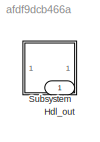
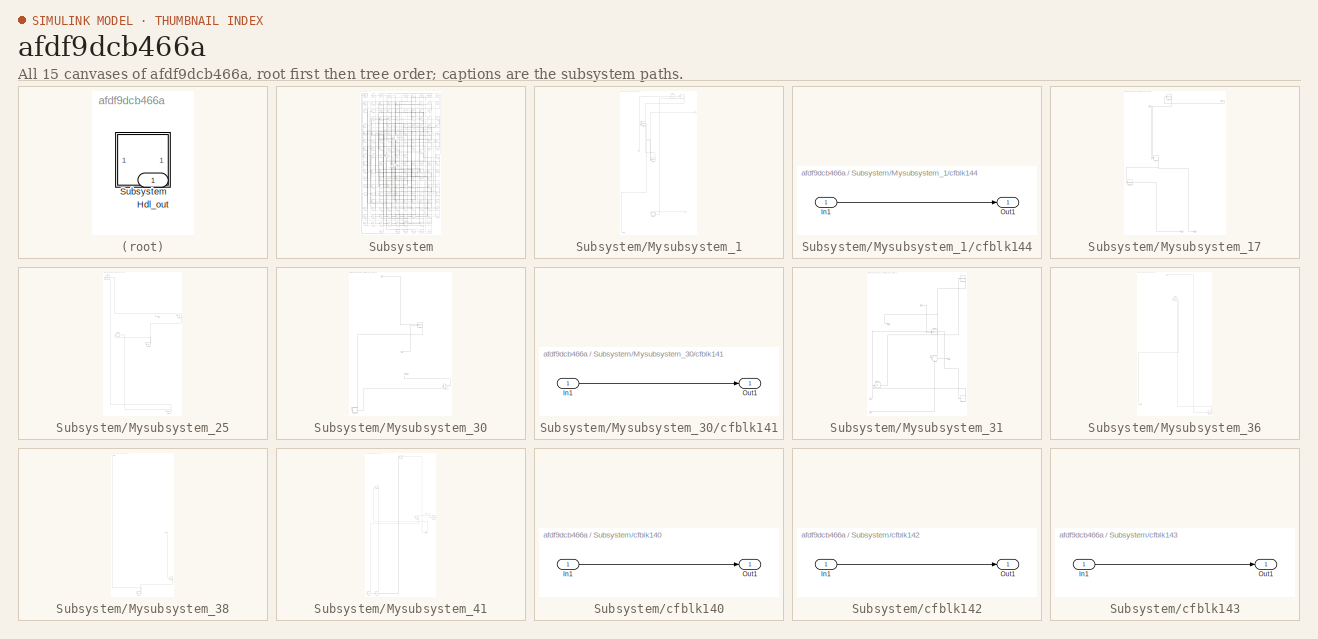
[diagram: thumbnail index - all 15 canvases of the model, root first then tree order]
MODEL slx_afdf9dcb466a
KIND model
CONFIG AbsTol = auto
CONFIG EnableMultiTasking = off
CONFIG FixedStep = auto
CONFIG MaxStep = auto
CONFIG MinStep = auto
CONFIG RelTol = 1e-3
CONFIG SampleTimeConstraint = Unconstrained
CONFIG SolverName = VariableStepAuto
CONFIG StartTime = 0.0
CONFIG StopTime = 10.0
BLOCK [Outport] Hdl_out
  OutDataTypeStr = uint8
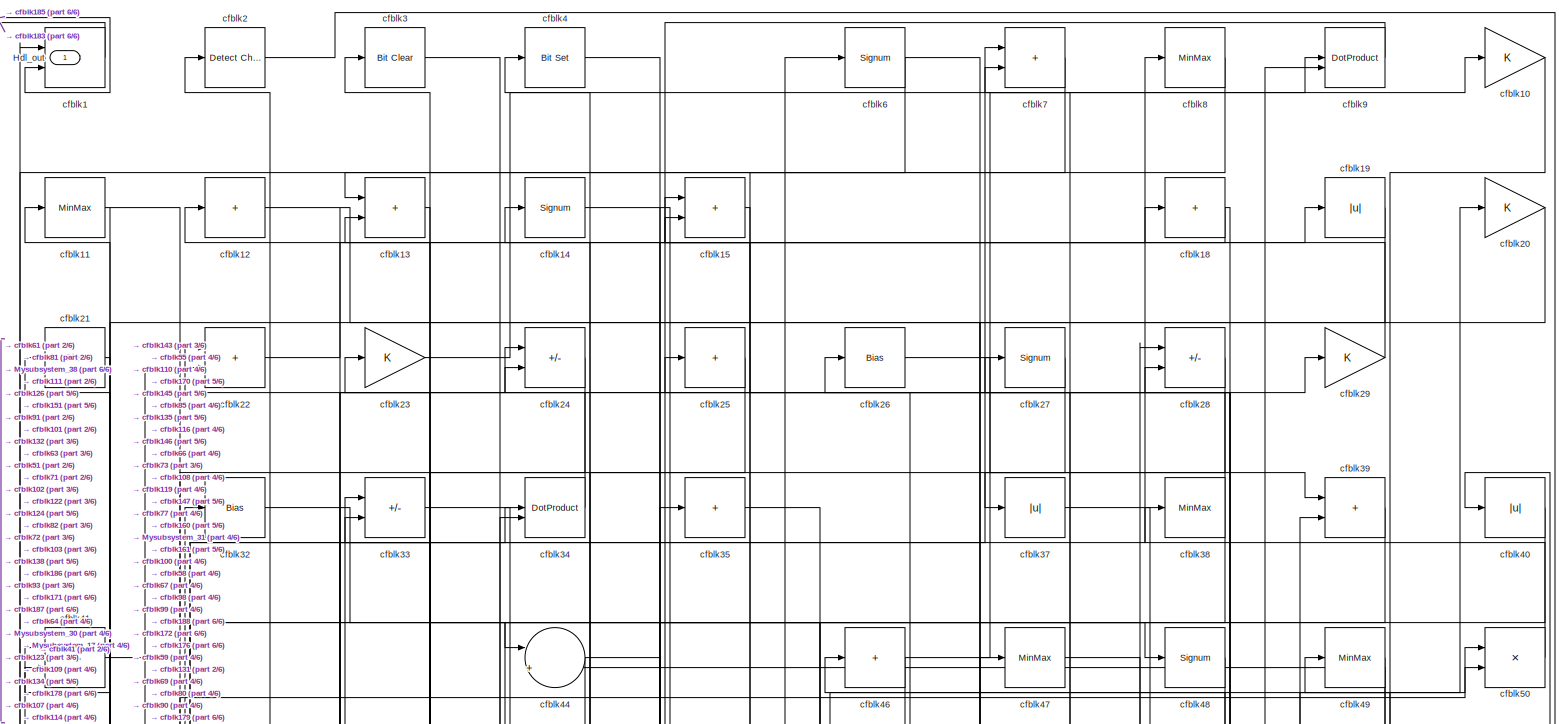
[diagram: Subsystem - part 1/6, full width, top band]
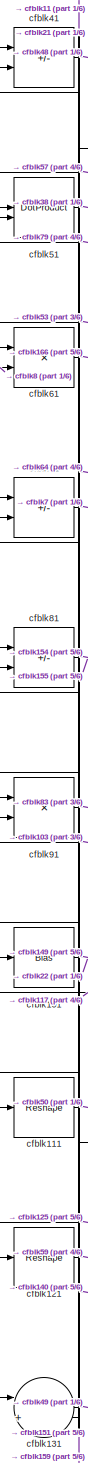
[diagram: Subsystem - part 2/6, middle left region]
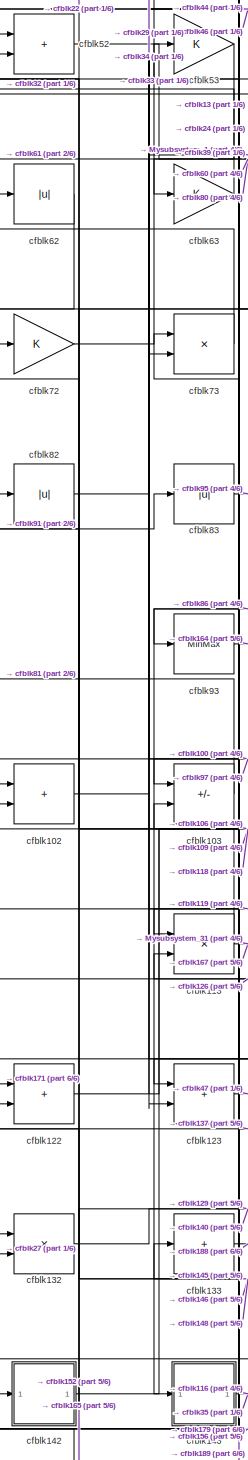
[diagram: Subsystem - part 3/6, middle left region]
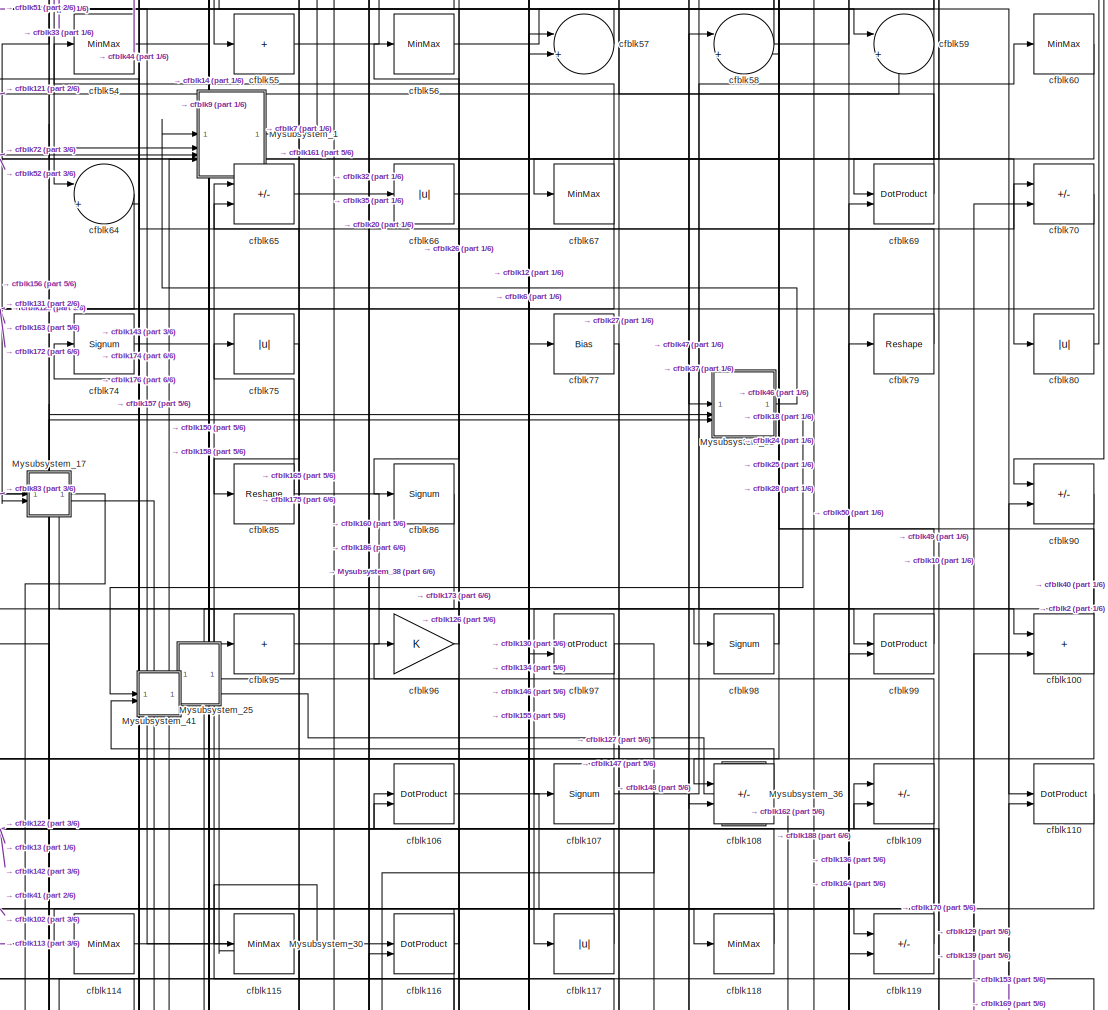
[diagram: Subsystem - part 4/6, central region]
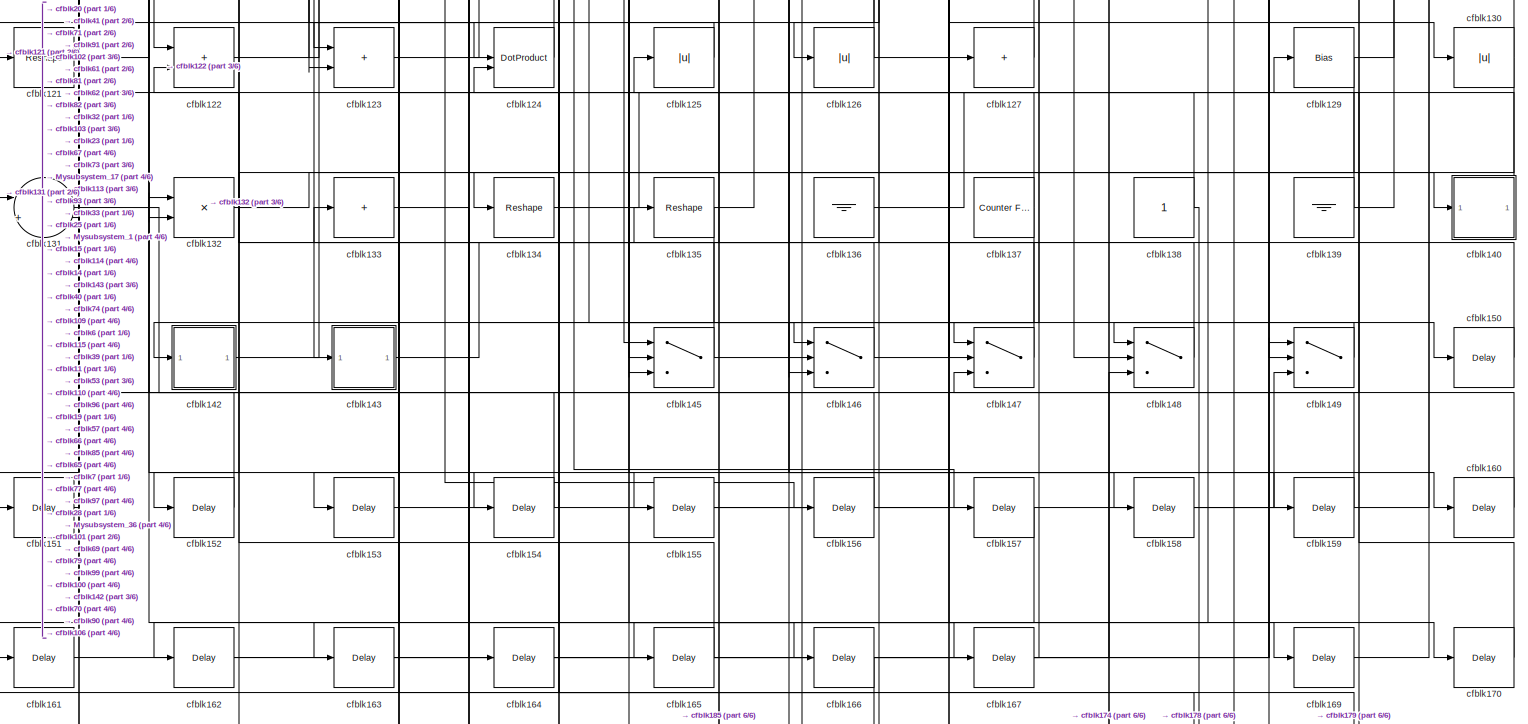
[diagram: Subsystem - part 5/6, full width, bottom band]
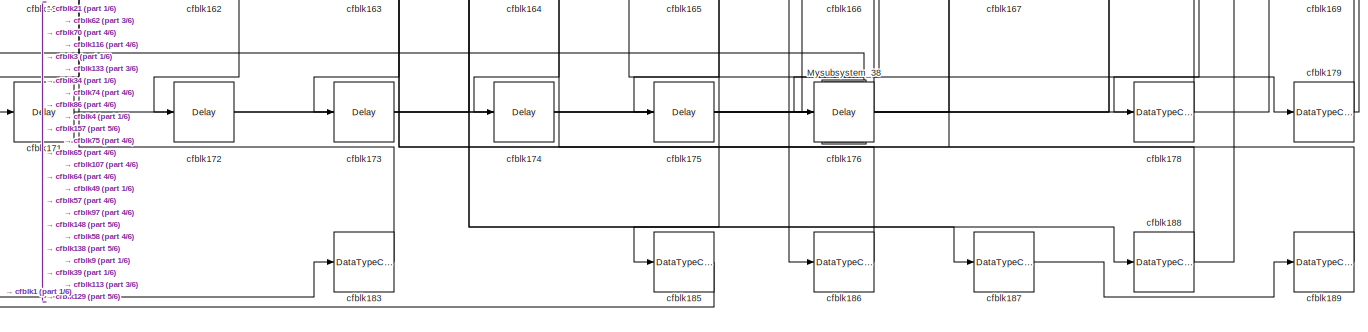
[diagram: Subsystem - part 6/6, full width, bottom band]
BLOCK [SubSystem] Subsystem
BLOCK [Outport] Subsystem/Hdl_out
  OutDataTypeStr = uint8
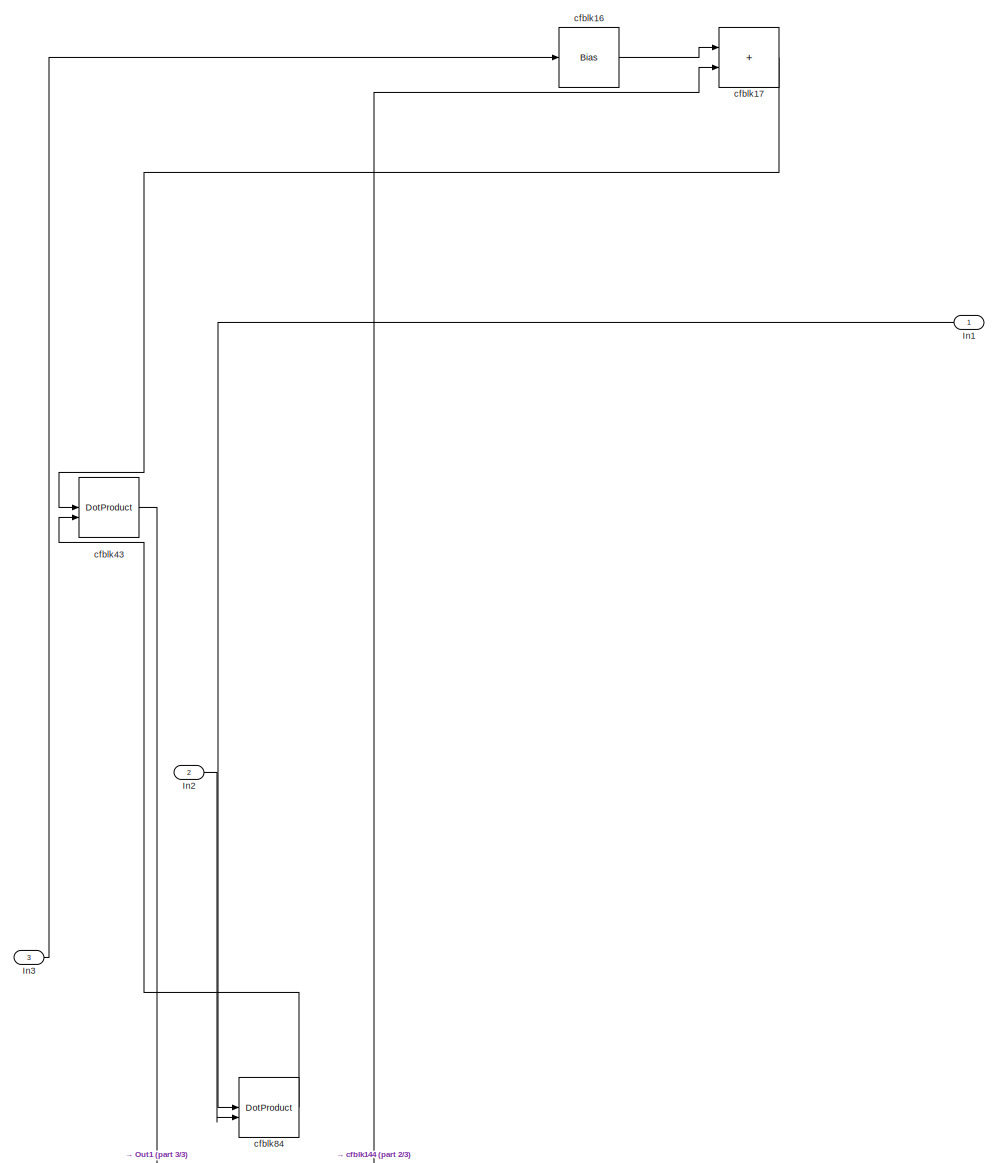
[diagram: Subsystem/Mysubsystem_1 - part 1/3, full width, top band]
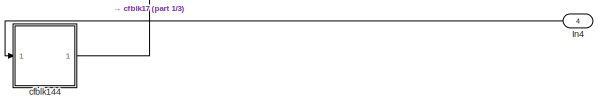
[diagram: Subsystem/Mysubsystem_1 - part 2/3, bottom center region]
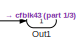
[diagram: Subsystem/Mysubsystem_1 - part 3/3, bottom left region]
BLOCK [SubSystem] Subsystem/Mysubsystem_1
  RTWFcnName = Mysubsystem_1
  RTWFcnNameOpts = User specified
  RTWFileNameOpts = Use function name
  RTWSystemCode = Reusable function
  TreatAsAtomicUnit = on
BLOCK [Inport] Subsystem/Mysubsystem_1/In1
BLOCK [Inport] Subsystem/Mysubsystem_1/In2
  Port = 2
BLOCK [Inport] Subsystem/Mysubsystem_1/In3
  Port = 3
BLOCK [Inport] Subsystem/Mysubsystem_1/In4
  Port = 4
BLOCK [Outport] Subsystem/Mysubsystem_1/Out1
BLOCK [SubSystem] Subsystem/Mysubsystem_1/cfblk144
  LibrarySourceBlock = hdlsllib/Ports &\nSubsystems/Subsystem
BLOCK [Inport] Subsystem/Mysubsystem_1/cfblk144/In1
BLOCK [Outport] Subsystem/Mysubsystem_1/cfblk144/Out1
BLOCK [Bias] Subsystem/Mysubsystem_1/cfblk16
  Bias = 0.0
  SaturateOnIntegerOverflow = off
BLOCK [Sum] Subsystem/Mysubsystem_1/cfblk17
  IconShape = rectangular
BLOCK [DotProduct] Subsystem/Mysubsystem_1/cfblk43
  OutDataTypeStr = Inherit: Inherit via internal rule
BLOCK [DotProduct] Subsystem/Mysubsystem_1/cfblk84
  OutDataTypeStr = Inherit: Inherit via internal rule
BLOCK [SubSystem] Subsystem/Mysubsystem_17
  RTWFcnName = Mysubsystem_17
  RTWFcnNameOpts = User specified
  RTWFileNameOpts = Use function name
  RTWSystemCode = Reusable function
  TreatAsAtomicUnit = on
BLOCK [Inport] Subsystem/Mysubsystem_17/In1
BLOCK [Inport] Subsystem/Mysubsystem_17/In2
  Port = 2
BLOCK [Outport] Subsystem/Mysubsystem_17/Out1
BLOCK [Outport] Subsystem/Mysubsystem_17/Out2
  Port = 2
BLOCK [Signum] Subsystem/Mysubsystem_17/cfblk112
BLOCK [Reshape] Subsystem/Mysubsystem_17/cfblk45
BLOCK [Sum] Subsystem/Mysubsystem_17/cfblk94
  IconShape = rectangular
BLOCK [SubSystem] Subsystem/Mysubsystem_25
  RTWFcnName = Mysubsystem_25
  RTWFcnNameOpts = User specified
  RTWFileNameOpts = Use function name
  RTWSystemCode = Reusable function
  TreatAsAtomicUnit = on
BLOCK [Outport] Subsystem/Mysubsystem_25/Out1
BLOCK [Bias] Subsystem/Mysubsystem_25/cfblk105
  Bias = 0.0
  SaturateOnIntegerOverflow = off
BLOCK [Delay] Subsystem/Mysubsystem_25/cfblk177
  InputPortMap = u0
  SampleTime = 1
BLOCK [MinMax] Subsystem/Mysubsystem_25/cfblk31
BLOCK [Bias] Subsystem/Mysubsystem_25/cfblk78
  Bias = 0.0
  SaturateOnIntegerOverflow = off
BLOCK [Sum] Subsystem/Mysubsystem_25/cfblk92
  IconShape = rectangular
  Inputs = +
BLOCK [SubSystem] Subsystem/Mysubsystem_30
  RTWFcnName = Mysubsystem_30
  RTWFcnNameOpts = User specified
  RTWFileNameOpts = Use function name
  RTWSystemCode = Reusable function
  TreatAsAtomicUnit = on
BLOCK [Inport] Subsystem/Mysubsystem_30/In1
BLOCK [Inport] Subsystem/Mysubsystem_30/In2
  Port = 2
BLOCK [Outport] Subsystem/Mysubsystem_30/Out1
BLOCK [Gain] Subsystem/Mysubsystem_30/cfblk128
BLOCK [SubSystem] Subsystem/Mysubsystem_30/cfblk141
  LibrarySourceBlock = hdlsllib/Ports &\nSubsystems/Subsystem
BLOCK [Inport] Subsystem/Mysubsystem_30/cfblk141/In1
BLOCK [Outport] Subsystem/Mysubsystem_30/cfblk141/Out1
BLOCK [DotProduct] Subsystem/Mysubsystem_30/cfblk76
  OutDataTypeStr = Inherit: Inherit via internal rule
BLOCK [SubSystem] Subsystem/Mysubsystem_31
  RTWFcnName = Mysubsystem_31
  RTWFcnNameOpts = User specified
  RTWFileNameOpts = Use function name
  RTWSystemCode = Reusable function
  TreatAsAtomicUnit = on
BLOCK [Inport] Subsystem/Mysubsystem_31/In1
BLOCK [Inport] Subsystem/Mysubsystem_31/In2
  Port = 2
BLOCK [Inport] Subsystem/Mysubsystem_31/In3
  Port = 3
BLOCK [Outport] Subsystem/Mysubsystem_31/Out1
BLOCK [Outport] Subsystem/Mysubsystem_31/Out2
  Port = 2
BLOCK [Abs] Subsystem/Mysubsystem_31/cfblk104
  SaturateOnIntegerOverflow = off
BLOCK [Sum] Subsystem/Mysubsystem_31/cfblk120
  IconShape = rectangular
  Inputs = +
BLOCK [Signum] Subsystem/Mysubsystem_31/cfblk30
BLOCK [DotProduct] Subsystem/Mysubsystem_31/cfblk68
  OutDataTypeStr = Inherit: Inherit via internal rule
BLOCK [Sum] Subsystem/Mysubsystem_31/cfblk88
  Inputs = |++
BLOCK [SubSystem] Subsystem/Mysubsystem_36
  RTWFcnName = Mysubsystem_36
  RTWFcnNameOpts = User specified
  RTWFileNameOpts = Use function name
  RTWSystemCode = Reusable function
  TreatAsAtomicUnit = on
BLOCK [Inport] Subsystem/Mysubsystem_36/In1
BLOCK [Outport] Subsystem/Mysubsystem_36/Out1
BLOCK [DataTypeConversion] Subsystem/Mysubsystem_36/cfblk180
  OutDataTypeStr = uint8
  RndMeth = Floor
  SaturateOnIntegerOverflow = off
BLOCK [Bias] Subsystem/Mysubsystem_36/cfblk36
  Bias = 0.0
  SaturateOnIntegerOverflow = off
BLOCK [SubSystem] Subsystem/Mysubsystem_38
  RTWFcnName = Mysubsystem_38
  RTWFcnNameOpts = User specified
  RTWFileNameOpts = Use function name
  RTWSystemCode = Reusable function
  TreatAsAtomicUnit = on
BLOCK [Inport] Subsystem/Mysubsystem_38/In1
BLOCK [Outport] Subsystem/Mysubsystem_38/Out1
BLOCK [Delay] Subsystem/Mysubsystem_38/cfblk168
  InputPortMap = u0
  SampleTime = 1
BLOCK [DataTypeConversion] Subsystem/Mysubsystem_38/cfblk184
  OutDataTypeStr = uint8
  RndMeth = Floor
  SaturateOnIntegerOverflow = off
BLOCK [SubSystem] Subsystem/Mysubsystem_41
  RTWFcnName = Mysubsystem_41
  RTWFcnNameOpts = User specified
  RTWFileNameOpts = Use function name
  RTWSystemCode = Reusable function
  TreatAsAtomicUnit = on
BLOCK [Inport] Subsystem/Mysubsystem_41/In1
BLOCK [Inport] Subsystem/Mysubsystem_41/In2
  Port = 2
BLOCK [Outport] Subsystem/Mysubsystem_41/Out1
BLOCK [DataTypeConversion] Subsystem/Mysubsystem_41/cfblk181
  OutDataTypeStr = uint8
  RndMeth = Floor
  SaturateOnIntegerOverflow = off
BLOCK [DataTypeConversion] Subsystem/Mysubsystem_41/cfblk182
  OutDataTypeStr = uint8
  RndMeth = Floor
  SaturateOnIntegerOverflow = off
BLOCK [Reshape] Subsystem/Mysubsystem_41/cfblk42
BLOCK [Logic] Subsystem/Mysubsystem_41/cfblk5
  AllPortsSameDT = off
  OutDataTypeStr = boolean
BLOCK [Gain] Subsystem/Mysubsystem_41/cfblk87
BLOCK [Signum] Subsystem/Mysubsystem_41/cfblk89
BLOCK [RelationalOperator] Subsystem/cfblk1
  InputSameDT = off
  Operator = <=
  OutDataTypeStr = boolean
BLOCK [Gain] Subsystem/cfblk10
  OutDataTypeStr = uint8
BLOCK [Sum] Subsystem/cfblk100
  IconShape = rectangular
  OutDataTypeStr = uint8
BLOCK [Bias] Subsystem/cfblk101
  Bias = 0.0
  SaturateOnIntegerOverflow = off
BLOCK [Sum] Subsystem/cfblk102
  IconShape = rectangular
  OutDataTypeStr = uint8
BLOCK [Sum] Subsystem/cfblk103
  IconShape = rectangular
  Inputs = +-
  OutDataTypeStr = uint8
BLOCK [DotProduct] Subsystem/cfblk106
  OutDataTypeStr = uint8
BLOCK [Signum] Subsystem/cfblk107
BLOCK [Sum] Subsystem/cfblk108
  IconShape = rectangular
  Inputs = +-
  OutDataTypeStr = uint8
BLOCK [Sum] Subsystem/cfblk109
  IconShape = rectangular
  Inputs = +-
  OutDataTypeStr = uint8
BLOCK [MinMax] Subsystem/cfblk11
  OutDataTypeStr = uint8
BLOCK [DotProduct] Subsystem/cfblk110
  OutDataTypeStr = uint8
BLOCK [Reshape] Subsystem/cfblk111
BLOCK [Product] Subsystem/cfblk113
  Inputs = */
  OutDataTypeStr = uint8
  RndMeth = Zero
  SaturateOnIntegerOverflow = on
BLOCK [MinMax] Subsystem/cfblk114
  OutDataTypeStr = uint8
BLOCK [MinMax] Subsystem/cfblk115
  OutDataTypeStr = uint8
BLOCK [DotProduct] Subsystem/cfblk116
  OutDataTypeStr = uint8
BLOCK [Abs] Subsystem/cfblk117
  OutDataTypeStr = uint8
  SaturateOnIntegerOverflow = off
BLOCK [MinMax] Subsystem/cfblk118
  OutDataTypeStr = uint8
BLOCK [Sum] Subsystem/cfblk119
  IconShape = rectangular
  Inputs = +-
  OutDataTypeStr = uint8
BLOCK [Sum] Subsystem/cfblk12
  IconShape = rectangular
  Inputs = +
  OutDataTypeStr = uint8
BLOCK [Reshape] Subsystem/cfblk121
BLOCK [Sum] Subsystem/cfblk122
  IconShape = rectangular
  OutDataTypeStr = uint8
BLOCK [Sum] Subsystem/cfblk123
  IconShape = rectangular
  OutDataTypeStr = uint8
BLOCK [DotProduct] Subsystem/cfblk124
  OutDataTypeStr = uint8
BLOCK [Abs] Subsystem/cfblk125
  OutDataTypeStr = uint8
  SaturateOnIntegerOverflow = off
BLOCK [Abs] Subsystem/cfblk126
  OutDataTypeStr = uint8
  SaturateOnIntegerOverflow = off
BLOCK [Sum] Subsystem/cfblk127
  IconShape = rectangular
  Inputs = +
  OutDataTypeStr = uint8
BLOCK [Bias] Subsystem/cfblk129
  Bias = 0.0
  SaturateOnIntegerOverflow = off
BLOCK [Sum] Subsystem/cfblk13
  IconShape = rectangular
  OutDataTypeStr = uint8
BLOCK [Abs] Subsystem/cfblk130
  OutDataTypeStr = uint8
  SaturateOnIntegerOverflow = off
BLOCK [Sum] Subsystem/cfblk131
  Inputs = |++
  OutDataTypeStr = uint8
BLOCK [Product] Subsystem/cfblk132
  Inputs = */
  OutDataTypeStr = uint8
  RndMeth = Zero
  SaturateOnIntegerOverflow = on
BLOCK [Sum] Subsystem/cfblk133
  IconShape = rectangular
  Inputs = +
  OutDataTypeStr = uint8
BLOCK [Reshape] Subsystem/cfblk134
BLOCK [Reshape] Subsystem/cfblk135
BLOCK [Ground] Subsystem/cfblk136
BLOCK [Reference] Subsystem/cfblk137  REF=hdlsllib/Sources/Counter
Free-Running
  SourceBlock = hdlsllib/Sources/Counter\nFree-Running
  SourceType = Counter Free-Running
BLOCK [Constant] Subsystem/cfblk138
  OutDataTypeStr = uint8
  SampleTime = -1
BLOCK [Ground] Subsystem/cfblk139
BLOCK [Signum] Subsystem/cfblk14
BLOCK [SubSystem] Subsystem/cfblk140
  LibrarySourceBlock = hdlsllib/Ports &\nSubsystems/Subsystem
BLOCK [Inport] Subsystem/cfblk140/In1
BLOCK [Outport] Subsystem/cfblk140/Out1
BLOCK [SubSystem] Subsystem/cfblk142
  LibrarySourceBlock = hdlsllib/Ports &\nSubsystems/Subsystem
BLOCK [Inport] Subsystem/cfblk142/In1
BLOCK [Outport] Subsystem/cfblk142/Out1
BLOCK [SubSystem] Subsystem/cfblk143
  LibrarySourceBlock = hdlsllib/Ports &\nSubsystems/Subsystem
BLOCK [Inport] Subsystem/cfblk143/In1
BLOCK [Outport] Subsystem/cfblk143/Out1
BLOCK [Switch] Subsystem/cfblk145
  InputSameDT = off
  OutDataTypeStr = uint8
  SaturateOnIntegerOverflow = off
BLOCK [Switch] Subsystem/cfblk146
  InputSameDT = off
  OutDataTypeStr = uint8
  SaturateOnIntegerOverflow = off
BLOCK [Switch] Subsystem/cfblk147
  InputSameDT = off
  OutDataTypeStr = uint8
  SaturateOnIntegerOverflow = off
BLOCK [Switch] Subsystem/cfblk148
  InputSameDT = off
  OutDataTypeStr = uint8
  SaturateOnIntegerOverflow = off
BLOCK [Switch] Subsystem/cfblk149
  InputSameDT = off
  OutDataTypeStr = uint8
  SaturateOnIntegerOverflow = off
BLOCK [Sum] Subsystem/cfblk15
  IconShape = rectangular
  OutDataTypeStr = uint8
BLOCK [Delay] Subsystem/cfblk150
  InputPortMap = u0
  SampleTime = 1
BLOCK [Delay] Subsystem/cfblk151
  InputPortMap = u0
  SampleTime = 1
BLOCK [Delay] Subsystem/cfblk152
  InputPortMap = u0
  SampleTime = 1
BLOCK [Delay] Subsystem/cfblk153
  InputPortMap = u0
  SampleTime = 1
BLOCK [Delay] Subsystem/cfblk154
  InputPortMap = u0
  SampleTime = 1
BLOCK [Delay] Subsystem/cfblk155
  InputPortMap = u0
  SampleTime = 1
BLOCK [Delay] Subsystem/cfblk156
  InputPortMap = u0
  SampleTime = 1
BLOCK [Delay] Subsystem/cfblk157
  InputPortMap = u0
  SampleTime = 1
BLOCK [Delay] Subsystem/cfblk158
  InputPortMap = u0
  SampleTime = 1
BLOCK [Delay] Subsystem/cfblk159
  InputPortMap = u0
  SampleTime = 1
BLOCK [Delay] Subsystem/cfblk160
  InputPortMap = u0
  SampleTime = 1
BLOCK [Delay] Subsystem/cfblk161
  InputPortMap = u0
  SampleTime = 1
BLOCK [Delay] Subsystem/cfblk162
  InputPortMap = u0
  SampleTime = 1
BLOCK [Delay] Subsystem/cfblk163
  InputPortMap = u0
  SampleTime = 1
BLOCK [Delay] Subsystem/cfblk164
  InputPortMap = u0
  SampleTime = 1
BLOCK [Delay] Subsystem/cfblk165
  InputPortMap = u0
  SampleTime = 1
BLOCK [Delay] Subsystem/cfblk166
  InputPortMap = u0
  SampleTime = 1
BLOCK [Delay] Subsystem/cfblk167
  InputPortMap = u0
  SampleTime = 1
BLOCK [Delay] Subsystem/cfblk169
  InputPortMap = u0
  SampleTime = 1
BLOCK [Delay] Subsystem/cfblk170
  InputPortMap = u0
  SampleTime = 1
BLOCK [Delay] Subsystem/cfblk171
  InputPortMap = u0
  SampleTime = 1
BLOCK [Delay] Subsystem/cfblk172
  InputPortMap = u0
  SampleTime = 1
BLOCK [Delay] Subsystem/cfblk173
  InputPortMap = u0
  SampleTime = 1
BLOCK [Delay] Subsystem/cfblk174
  InputPortMap = u0
  SampleTime = 1
BLOCK [Delay] Subsystem/cfblk175
  InputPortMap = u0
  SampleTime = 1
BLOCK [Delay] Subsystem/cfblk176
  InputPortMap = u0
  SampleTime = 1
BLOCK [DataTypeConversion] Subsystem/cfblk178
  OutDataTypeStr = uint8
  RndMeth = Floor
  SaturateOnIntegerOverflow = off
BLOCK [DataTypeConversion] Subsystem/cfblk179
  OutDataTypeStr = uint8
  RndMeth = Floor
  SaturateOnIntegerOverflow = off
BLOCK [Sum] Subsystem/cfblk18
  IconShape = rectangular
  Inputs = +
  OutDataTypeStr = uint8
BLOCK [DataTypeConversion] Subsystem/cfblk183
  OutDataTypeStr = uint8
  RndMeth = Floor
  SaturateOnIntegerOverflow = off
BLOCK [DataTypeConversion] Subsystem/cfblk185
  OutDataTypeStr = uint8
  RndMeth = Floor
  SaturateOnIntegerOverflow = off
BLOCK [DataTypeConversion] Subsystem/cfblk186
  OutDataTypeStr = uint8
  RndMeth = Floor
  SaturateOnIntegerOverflow = off
BLOCK [DataTypeConversion] Subsystem/cfblk187
  OutDataTypeStr = uint8
  RndMeth = Floor
  SaturateOnIntegerOverflow = off
BLOCK [DataTypeConversion] Subsystem/cfblk188
  OutDataTypeStr = uint8
  RndMeth = Floor
  SaturateOnIntegerOverflow = off
BLOCK [DataTypeConversion] Subsystem/cfblk189
  OutDataTypeStr = uint8
  RndMeth = Floor
  SaturateOnIntegerOverflow = off
BLOCK [Abs] Subsystem/cfblk19
  OutDataTypeStr = uint8
  SaturateOnIntegerOverflow = off
BLOCK [Reference] Subsystem/cfblk2  REF=simulink/Logic and Bit
Operations/Detect
Change
  LibrarySourceBlock = hdlsllib/Logic and Bit\nOperations/Detect\nChange
  SourceBlock = simulink/Logic and Bit\nOperations/Detect\nChange
  SourceType = Detect Change
BLOCK [Gain] Subsystem/cfblk20
  OutDataTypeStr = uint8
BLOCK [Bias] Subsystem/cfblk21
  Bias = 0.0
  SaturateOnIntegerOverflow = off
BLOCK [Sum] Subsystem/cfblk22
  IconShape = rectangular
  OutDataTypeStr = uint8
BLOCK [Gain] Subsystem/cfblk23
  OutDataTypeStr = uint8
BLOCK [Sum] Subsystem/cfblk24
  IconShape = rectangular
  Inputs = +-
  OutDataTypeStr = uint8
BLOCK [Sum] Subsystem/cfblk25
  IconShape = rectangular
  Inputs = +
  OutDataTypeStr = uint8
BLOCK [Bias] Subsystem/cfblk26
  Bias = 0.0
  SaturateOnIntegerOverflow = off
BLOCK [Signum] Subsystem/cfblk27
BLOCK [Sum] Subsystem/cfblk28
  IconShape = rectangular
  Inputs = +-
  OutDataTypeStr = uint8
BLOCK [Gain] Subsystem/cfblk29
  OutDataTypeStr = uint8
BLOCK [Reference] Subsystem/cfblk3  REF=simulink/Logic and Bit
Operations/Bit Clear
  LibrarySourceBlock = hdlsllib/Logic and Bit\nOperations/Bit Clear
  SourceBlock = simulink/Logic and Bit\nOperations/Bit Clear
  SourceType = Bit Clear
BLOCK [Bias] Subsystem/cfblk32
  Bias = 0.0
  SaturateOnIntegerOverflow = off
BLOCK [Sum] Subsystem/cfblk33
  IconShape = rectangular
  Inputs = +-
  OutDataTypeStr = uint8
BLOCK [DotProduct] Subsystem/cfblk34
  OutDataTypeStr = uint8
BLOCK [Sum] Subsystem/cfblk35
  IconShape = rectangular
  Inputs = +
  OutDataTypeStr = uint8
BLOCK [Abs] Subsystem/cfblk37
  OutDataTypeStr = uint8
  SaturateOnIntegerOverflow = off
BLOCK [MinMax] Subsystem/cfblk38
  OutDataTypeStr = uint8
BLOCK [Sum] Subsystem/cfblk39
  IconShape = rectangular
  OutDataTypeStr = uint8
BLOCK [Reference] Subsystem/cfblk4  REF=simulink/Logic and Bit
Operations/Bit Set
  LibrarySourceBlock = hdlsllib/Logic and Bit\nOperations/Bit Set
  SourceBlock = simulink/Logic and Bit\nOperations/Bit Set
  SourceType = Bit Set
BLOCK [Abs] Subsystem/cfblk40
  OutDataTypeStr = uint8
  SaturateOnIntegerOverflow = off
BLOCK [Sum] Subsystem/cfblk41
  IconShape = rectangular
  Inputs = +-
  OutDataTypeStr = uint8
BLOCK [Sum] Subsystem/cfblk44
  Inputs = |++
  OutDataTypeStr = uint8
BLOCK [Sum] Subsystem/cfblk46
  IconShape = rectangular
  Inputs = +
  OutDataTypeStr = uint8
BLOCK [MinMax] Subsystem/cfblk47
  OutDataTypeStr = uint8
BLOCK [Signum] Subsystem/cfblk48
BLOCK [MinMax] Subsystem/cfblk49
  OutDataTypeStr = uint8
BLOCK [Product] Subsystem/cfblk50
  Inputs = */
  OutDataTypeStr = uint8
  RndMeth = Zero
  SaturateOnIntegerOverflow = on
BLOCK [DotProduct] Subsystem/cfblk51
  OutDataTypeStr = uint8
BLOCK [Sum] Subsystem/cfblk52
  IconShape = rectangular
  OutDataTypeStr = uint8
BLOCK [Gain] Subsystem/cfblk53
  OutDataTypeStr = uint8
BLOCK [MinMax] Subsystem/cfblk54
  OutDataTypeStr = uint8
BLOCK [Sum] Subsystem/cfblk55
  IconShape = rectangular
  Inputs = +
  OutDataTypeStr = uint8
BLOCK [MinMax] Subsystem/cfblk56
  OutDataTypeStr = uint8
BLOCK [Sum] Subsystem/cfblk57
  Inputs = |++
  OutDataTypeStr = uint8
BLOCK [Sum] Subsystem/cfblk58
  Inputs = |++
  OutDataTypeStr = uint8
BLOCK [Sum] Subsystem/cfblk59
  Inputs = |++
  OutDataTypeStr = uint8
BLOCK [Signum] Subsystem/cfblk6
BLOCK [MinMax] Subsystem/cfblk60
  OutDataTypeStr = uint8
BLOCK [Product] Subsystem/cfblk61
  Inputs = */
  OutDataTypeStr = uint8
  RndMeth = Zero
  SaturateOnIntegerOverflow = on
BLOCK [Abs] Subsystem/cfblk62
  OutDataTypeStr = uint8
  SaturateOnIntegerOverflow = off
BLOCK [Gain] Subsystem/cfblk63
  OutDataTypeStr = uint8
BLOCK [Sum] Subsystem/cfblk64
  Inputs = |++
  OutDataTypeStr = uint8
BLOCK [Sum] Subsystem/cfblk65
  IconShape = rectangular
  Inputs = +-
  OutDataTypeStr = uint8
BLOCK [Abs] Subsystem/cfblk66
  OutDataTypeStr = uint8
  SaturateOnIntegerOverflow = off
BLOCK [MinMax] Subsystem/cfblk67
  OutDataTypeStr = uint8
BLOCK [DotProduct] Subsystem/cfblk69
  OutDataTypeStr = uint8
BLOCK [Sum] Subsystem/cfblk7
  IconShape = rectangular
  OutDataTypeStr = uint8
BLOCK [Sum] Subsystem/cfblk70
  IconShape = rectangular
  Inputs = +-
  OutDataTypeStr = uint8
BLOCK [Sum] Subsystem/cfblk71
  IconShape = rectangular
  Inputs = +-
  OutDataTypeStr = uint8
BLOCK [Gain] Subsystem/cfblk72
  OutDataTypeStr = uint8
BLOCK [Product] Subsystem/cfblk73
  Inputs = */
  OutDataTypeStr = uint8
  RndMeth = Zero
  SaturateOnIntegerOverflow = on
BLOCK [Signum] Subsystem/cfblk74
BLOCK [Abs] Subsystem/cfblk75
  OutDataTypeStr = uint8
  SaturateOnIntegerOverflow = off
BLOCK [Bias] Subsystem/cfblk77
  Bias = 0.0
  SaturateOnIntegerOverflow = off
BLOCK [Reshape] Subsystem/cfblk79
BLOCK [MinMax] Subsystem/cfblk8
  OutDataTypeStr = uint8
BLOCK [Abs] Subsystem/cfblk80
  OutDataTypeStr = uint8
  SaturateOnIntegerOverflow = off
BLOCK [Sum] Subsystem/cfblk81
  IconShape = rectangular
  Inputs = +-
  OutDataTypeStr = uint8
BLOCK [Abs] Subsystem/cfblk82
  OutDataTypeStr = uint8
  SaturateOnIntegerOverflow = off
BLOCK [Abs] Subsystem/cfblk83
  OutDataTypeStr = uint8
  SaturateOnIntegerOverflow = off
BLOCK [Reshape] Subsystem/cfblk85
BLOCK [Signum] Subsystem/cfblk86
BLOCK [DotProduct] Subsystem/cfblk9
  OutDataTypeStr = uint8
BLOCK [Sum] Subsystem/cfblk90
  IconShape = rectangular
  Inputs = +-
  OutDataTypeStr = uint8
BLOCK [Product] Subsystem/cfblk91
  Inputs = */
  OutDataTypeStr = uint8
  RndMeth = Zero
  SaturateOnIntegerOverflow = on
BLOCK [MinMax] Subsystem/cfblk93
  OutDataTypeStr = uint8
BLOCK [Sum] Subsystem/cfblk95
  IconShape = rectangular
  Inputs = +
  OutDataTypeStr = uint8
BLOCK [Gain] Subsystem/cfblk96
  OutDataTypeStr = uint8
BLOCK [DotProduct] Subsystem/cfblk97
  OutDataTypeStr = uint8
BLOCK [Signum] Subsystem/cfblk98
BLOCK [DotProduct] Subsystem/cfblk99
  OutDataTypeStr = uint8
LINE Subsystem/Mysubsystem_1/In1:1 -> Subsystem/Mysubsystem_1/cfblk84:1
LINE Subsystem/Mysubsystem_1/In2:1 -> Subsystem/Mysubsystem_1/cfblk84:2
LINE Subsystem/Mysubsystem_1/In3:1 -> Subsystem/Mysubsystem_1/cfblk16:1
LINE Subsystem/Mysubsystem_1/In4:1 -> Subsystem/Mysubsystem_1/cfblk144:1
LINE Subsystem/Mysubsystem_1/cfblk144/In1:1 -> Subsystem/Mysubsystem_1/cfblk144/Out1:1
LINE Subsystem/Mysubsystem_1/cfblk144:1 -> Subsystem/Mysubsystem_1/cfblk17:2
LINE Subsystem/Mysubsystem_1/cfblk16:1 -> Subsystem/Mysubsystem_1/cfblk17:1
LINE Subsystem/Mysubsystem_1/cfblk17:1 -> Subsystem/Mysubsystem_1/cfblk43:1
LINE Subsystem/Mysubsystem_1/cfblk43:1 -> Subsystem/Mysubsystem_1/Out1:1
LINE Subsystem/Mysubsystem_1/cfblk84:1 -> Subsystem/Mysubsystem_1/cfblk43:2
LINE Subsystem/Mysubsystem_17/In1:1 -> Subsystem/Mysubsystem_17/cfblk45:1
LINE Subsystem/Mysubsystem_17/In2:1 -> Subsystem/Mysubsystem_17/cfblk94:2
LINE Subsystem/Mysubsystem_17/cfblk112:1 -> Subsystem/Mysubsystem_17/Out1:1
LINE Subsystem/Mysubsystem_17/cfblk45:1 -> Subsystem/Mysubsystem_17/cfblk94:1
NET Subsystem/Mysubsystem_17/cfblk94:1 -> Subsystem/Mysubsystem_17/Out2:1, Subsystem/Mysubsystem_17/cfblk112:1
LINE Subsystem/Mysubsystem_17:1 -> Subsystem/cfblk156:1
LINE Subsystem/Mysubsystem_17:2 -> Subsystem/cfblk157:1
LINE Subsystem/Mysubsystem_1:1 -> Subsystem/cfblk161:1
LINE Subsystem/Mysubsystem_25/cfblk105:1 -> Subsystem/Mysubsystem_25/cfblk92:1
LINE Subsystem/Mysubsystem_25/cfblk177:1 -> Subsystem/Mysubsystem_25/cfblk31:1
NET Subsystem/Mysubsystem_25/cfblk31:1 -> Subsystem/Mysubsystem_25/Out1:1, Subsystem/Mysubsystem_25/cfblk78:1
LINE Subsystem/Mysubsystem_25/cfblk78:1 -> Subsystem/Mysubsystem_25/cfblk105:1
LINE Subsystem/Mysubsystem_25/cfblk92:1 -> Subsystem/Mysubsystem_25/cfblk177:1
LINE Subsystem/Mysubsystem_25:1 -> Subsystem/Mysubsystem_30:2
LINE Subsystem/Mysubsystem_30/In1:1 -> Subsystem/Mysubsystem_30/cfblk76:1
LINE Subsystem/Mysubsystem_30/In2:1 -> Subsystem/Mysubsystem_30/cfblk76:2
LINE Subsystem/Mysubsystem_30/cfblk128:1 -> Subsystem/Mysubsystem_30/Out1:1
LINE Subsystem/Mysubsystem_30/cfblk141/In1:1 -> Subsystem/Mysubsystem_30/cfblk141/Out1:1
LINE Subsystem/Mysubsystem_30/cfblk141:1 -> Subsystem/Mysubsystem_30/cfblk128:1
LINE Subsystem/Mysubsystem_30/cfblk76:1 -> Subsystem/Mysubsystem_30/cfblk141:1
LINE Subsystem/Mysubsystem_30:1 -> Subsystem/cfblk115:1
LINE Subsystem/Mysubsystem_31/In1:1 -> Subsystem/Mysubsystem_31/cfblk68:2
LINE Subsystem/Mysubsystem_31/In2:1 -> Subsystem/Mysubsystem_31/cfblk68:1
LINE Subsystem/Mysubsystem_31/In3:1 -> Subsystem/Mysubsystem_31/cfblk88:2
LINE Subsystem/Mysubsystem_31/cfblk104:1 -> Subsystem/Mysubsystem_31/cfblk30:1
LINE Subsystem/Mysubsystem_31/cfblk120:1 -> Subsystem/Mysubsystem_31/cfblk104:1
NET Subsystem/Mysubsystem_31/cfblk30:1 -> Subsystem/Mysubsystem_31/Out1:1, Subsystem/Mysubsystem_31/cfblk88:1
LINE Subsystem/Mysubsystem_31/cfblk68:1 -> Subsystem/Mysubsystem_31/cfblk120:1
LINE Subsystem/Mysubsystem_31/cfblk88:1 -> Subsystem/Mysubsystem_31/Out2:1
LINE Subsystem/Mysubsystem_31:1 -> Subsystem/Mysubsystem_1:1
LINE Subsystem/Mysubsystem_31:2 -> Subsystem/Mysubsystem_41:1
LINE Subsystem/Mysubsystem_36/In1:1 -> Subsystem/Mysubsystem_36/cfblk180:1
LINE Subsystem/Mysubsystem_36/cfblk180:1 -> Subsystem/Mysubsystem_36/cfblk36:1
LINE Subsystem/Mysubsystem_36/cfblk36:1 -> Subsystem/Mysubsystem_36/Out1:1
LINE Subsystem/Mysubsystem_36:1 -> Subsystem/cfblk162:1
LINE Subsystem/Mysubsystem_38/In1:1 -> Subsystem/Mysubsystem_38/cfblk168:1
LINE Subsystem/Mysubsystem_38/cfblk168:1 -> Subsystem/Mysubsystem_38/cfblk184:1
LINE Subsystem/Mysubsystem_38/cfblk184:1 -> Subsystem/Mysubsystem_38/Out1:1
LINE Subsystem/Mysubsystem_38:1 -> Subsystem/cfblk1:1
LINE Subsystem/Mysubsystem_41/In1:1 -> Subsystem/Mysubsystem_41/cfblk89:1
LINE Subsystem/Mysubsystem_41/In2:1 -> Subsystem/Mysubsystem_41/cfblk42:1
LINE Subsystem/Mysubsystem_41/cfblk181:1 -> Subsystem/Mysubsystem_41/cfblk5:1
LINE Subsystem/Mysubsystem_41/cfblk182:1 -> Subsystem/Mysubsystem_41/cfblk5:2
LINE Subsystem/Mysubsystem_41/cfblk42:1 -> Subsystem/Mysubsystem_41/cfblk182:1
LINE Subsystem/Mysubsystem_41/cfblk5:1 -> Subsystem/Mysubsystem_41/Out1:1
LINE Subsystem/Mysubsystem_41/cfblk87:1 -> Subsystem/Mysubsystem_41/cfblk181:1
LINE Subsystem/Mysubsystem_41/cfblk89:1 -> Subsystem/Mysubsystem_41/cfblk87:1
LINE Subsystem/Mysubsystem_41:1 -> Subsystem/Mysubsystem_36:1
NET Subsystem/cfblk100:1 -> Subsystem/cfblk123:1, Subsystem/cfblk24:1
NET Subsystem/cfblk101:1 -> Subsystem/cfblk149:2, Subsystem/cfblk22:2
NET Subsystem/cfblk102:1 -> Subsystem/cfblk119:1, Subsystem/cfblk29:1, Subsystem/cfblk72:1
LINE Subsystem/cfblk103:1 -> Subsystem/cfblk81:1
LINE Subsystem/cfblk106:1 -> Subsystem/cfblk118:1
NET Subsystem/cfblk107:1 -> Subsystem/Mysubsystem_38:1, Subsystem/cfblk60:1
LINE Subsystem/cfblk108:1 -> Subsystem/Mysubsystem_41:2
NET Subsystem/cfblk109:1 -> Subsystem/cfblk14:1, Subsystem/cfblk165:1
LINE Subsystem/cfblk10:1 -> Subsystem/cfblk69:1
LINE Subsystem/cfblk110:1 -> Subsystem/cfblk126:1
LINE Subsystem/cfblk111:1 -> Subsystem/cfblk50:1
NET Subsystem/cfblk113:1 -> Subsystem/Mysubsystem_31:2, Subsystem/cfblk167:1, Subsystem/cfblk52:2
NET Subsystem/cfblk114:1 -> Subsystem/cfblk158:1, Subsystem/cfblk18:1
LINE Subsystem/cfblk115:1 -> Subsystem/cfblk160:1
NET Subsystem/cfblk116:1 -> Subsystem/cfblk114:1, Subsystem/cfblk173:1, Subsystem/cfblk26:1
LINE Subsystem/cfblk117:1 -> Subsystem/cfblk41:1
LINE Subsystem/cfblk118:1 -> Subsystem/cfblk52:1
LINE Subsystem/cfblk119:1 -> Subsystem/cfblk13:2
NET Subsystem/cfblk11:1 -> Subsystem/cfblk111:1, Subsystem/cfblk44:1
LINE Subsystem/cfblk121:1 -> Subsystem/cfblk59:2
NET Subsystem/cfblk122:1 -> Subsystem/cfblk109:1, Subsystem/cfblk24:2
NET Subsystem/cfblk123:1 -> Subsystem/Mysubsystem_31:3, Subsystem/cfblk47:1
LINE Subsystem/cfblk124:1 -> Subsystem/cfblk33:2
LINE Subsystem/cfblk125:1 -> Subsystem/cfblk121:1
NET Subsystem/cfblk126:1 -> Subsystem/cfblk11:1, Subsystem/cfblk169:1, Subsystem/cfblk53:1
LINE Subsystem/cfblk127:1 -> Subsystem/cfblk65:1
NET Subsystem/cfblk129:1 -> Subsystem/cfblk142:1, Subsystem/cfblk70:2
NET Subsystem/cfblk12:1 -> Subsystem/cfblk108:2, Subsystem/cfblk77:1
NET Subsystem/cfblk130:1 -> Subsystem/cfblk106:2, Subsystem/cfblk145:3
LINE Subsystem/cfblk131:1 -> Subsystem/cfblk49:1
LINE Subsystem/cfblk132:1 -> Subsystem/cfblk140:1
LINE Subsystem/cfblk133:1 -> Subsystem/cfblk188:1
LINE Subsystem/cfblk134:1 -> Subsystem/cfblk57:1
NET Subsystem/cfblk135:1 -> Subsystem/cfblk152:1, Subsystem/cfblk153:1, Subsystem/cfblk6:1
LINE Subsystem/cfblk136:1 -> Subsystem/cfblk79:1
NET Subsystem/cfblk137:1 -> Subsystem/cfblk146:3, Subsystem/cfblk73:1
NET Subsystem/cfblk138:1 -> Subsystem/cfblk178:1, Subsystem/cfblk23:1
NET Subsystem/cfblk139:1 -> Subsystem/cfblk100:2, Subsystem/cfblk125:1
LINE Subsystem/cfblk13:1 -> Subsystem/cfblk103:1
LINE Subsystem/cfblk140/In1:1 -> Subsystem/cfblk140/Out1:1
LINE Subsystem/cfblk140:1 -> Subsystem/cfblk71:1
LINE Subsystem/cfblk142/In1:1 -> Subsystem/cfblk142/Out1:1
LINE Subsystem/cfblk142:1 -> Subsystem/cfblk106:1
LINE Subsystem/cfblk143/In1:1 -> Subsystem/cfblk143/Out1:1
NET Subsystem/cfblk143:1 -> Subsystem/cfblk116:2, Subsystem/cfblk146:1, Subsystem/cfblk35:1
NET Subsystem/cfblk145:1 -> Subsystem/cfblk103:2, Subsystem/cfblk159:1
NET Subsystem/cfblk146:1 -> Subsystem/cfblk124:2, Subsystem/cfblk62:1, Subsystem/cfblk70:1
NET Subsystem/cfblk147:1 -> Subsystem/Mysubsystem_1:4, Subsystem/cfblk96:1
NET Subsystem/cfblk148:1 -> Subsystem/cfblk135:1, Subsystem/cfblk82:1
LINE Subsystem/cfblk149:1 -> Subsystem/cfblk148:1
NET Subsystem/cfblk14:1 -> Subsystem/cfblk110:1, Subsystem/cfblk170:1
LINE Subsystem/cfblk150:1 -> Subsystem/cfblk65:2
LINE Subsystem/cfblk151:1 -> Subsystem/cfblk91:2
LINE Subsystem/cfblk152:1 -> Subsystem/cfblk102:1
LINE Subsystem/cfblk153:1 -> Subsystem/cfblk90:2
LINE Subsystem/cfblk154:1 -> Subsystem/cfblk41:2
LINE Subsystem/cfblk155:1 -> Subsystem/cfblk97:2
LINE Subsystem/cfblk156:1 -> Subsystem/cfblk132:1
LINE Subsystem/cfblk157:1 -> Subsystem/cfblk185:1
LINE Subsystem/cfblk158:1 -> Subsystem/cfblk149:3
LINE Subsystem/cfblk159:1 -> Subsystem/cfblk71:2
LINE Subsystem/cfblk15:1 -> Subsystem/cfblk145:1
LINE Subsystem/cfblk160:1 -> Subsystem/cfblk7:2
LINE Subsystem/cfblk161:1 -> Subsystem/cfblk28:1
LINE Subsystem/cfblk162:1 -> Subsystem/cfblk149:1
LINE Subsystem/cfblk163:1 -> Subsystem/cfblk69:2
LINE Subsystem/cfblk164:1 -> Subsystem/cfblk99:2
LINE Subsystem/cfblk165:1 -> Subsystem/cfblk122:2
LINE Subsystem/cfblk166:1 -> Subsystem/cfblk131:1
LINE Subsystem/cfblk167:1 -> Subsystem/cfblk147:3
LINE Subsystem/cfblk169:1 -> Subsystem/cfblk110:2
LINE Subsystem/cfblk170:1 -> Subsystem/cfblk109:2
LINE Subsystem/cfblk171:1 -> Subsystem/cfblk34:2
LINE Subsystem/cfblk172:1 -> Subsystem/cfblk39:2
LINE Subsystem/cfblk173:1 -> Subsystem/cfblk57:2
LINE Subsystem/cfblk174:1 -> Subsystem/cfblk148:3
LINE Subsystem/cfblk175:1 -> Subsystem/cfblk58:1
LINE Subsystem/cfblk176:1 -> Subsystem/cfblk64:2
LINE Subsystem/cfblk178:1 -> Subsystem/cfblk4:1
NET Subsystem/cfblk179:1 -> Subsystem/cfblk113:2, Subsystem/cfblk129:1
LINE Subsystem/cfblk183:1 -> Subsystem/cfblk21:1
LINE Subsystem/cfblk185:1 -> Subsystem/cfblk1:2
LINE Subsystem/cfblk186:1 -> Subsystem/cfblk3:1
LINE Subsystem/cfblk187:1 -> Subsystem/cfblk189:1
NET Subsystem/cfblk188:1 -> Subsystem/cfblk74:1, Subsystem/cfblk97:1, Subsystem/cfblk9:2
LINE Subsystem/cfblk189:1 -> Subsystem/cfblk133:1
NET Subsystem/cfblk18:1 -> Subsystem/cfblk15:2, Subsystem/cfblk67:1
LINE Subsystem/cfblk19:1 -> Subsystem/cfblk147:2
LINE Subsystem/cfblk1:1 -> Subsystem/cfblk183:1
LINE Subsystem/cfblk20:1 -> Subsystem/cfblk151:1
LINE Subsystem/cfblk21:1 -> Subsystem/cfblk91:1
LINE Subsystem/cfblk22:1 -> Subsystem/cfblk19:1
LINE Subsystem/cfblk23:1 -> Subsystem/cfblk9:1
LINE Subsystem/cfblk24:1 -> Subsystem/cfblk63:1
LINE Subsystem/cfblk25:1 -> Subsystem/cfblk134:1
LINE Subsystem/cfblk26:1 -> Subsystem/cfblk39:1
LINE Subsystem/cfblk27:1 -> Subsystem/cfblk132:2
LINE Subsystem/cfblk28:1 -> Subsystem/cfblk37:1
LINE Subsystem/cfblk29:1 -> Subsystem/cfblk2:1
LINE Subsystem/cfblk2:1 -> Subsystem/cfblk90:1
NET Subsystem/cfblk32:1 -> Subsystem/cfblk124:1, Subsystem/cfblk66:1
LINE Subsystem/cfblk33:1 -> Subsystem/Mysubsystem_30:1
LINE Subsystem/cfblk34:1 -> Subsystem/cfblk12:1
LINE Subsystem/cfblk35:1 -> Subsystem/cfblk116:1
LINE Subsystem/cfblk37:1 -> Subsystem/cfblk100:1
NET Subsystem/cfblk38:1 -> Subsystem/cfblk15:1, Subsystem/cfblk64:1
NET Subsystem/cfblk39:1 -> Subsystem/cfblk146:2, Subsystem/cfblk93:1
LINE Subsystem/cfblk3:1 -> Subsystem/cfblk187:1
LINE Subsystem/cfblk40:1 -> Subsystem/cfblk145:2
LINE Subsystem/cfblk41:1 -> Subsystem/cfblk48:1
NET Subsystem/cfblk44:1 -> Subsystem/Mysubsystem_17:2, Subsystem/cfblk107:1, Subsystem/cfblk123:2
NET Subsystem/cfblk46:1 -> Subsystem/cfblk10:1, Subsystem/cfblk73:2
LINE Subsystem/cfblk47:1 -> Subsystem/Mysubsystem_31:1
LINE Subsystem/cfblk48:1 -> Subsystem/cfblk101:1
NET Subsystem/cfblk49:1 -> Subsystem/cfblk176:1, Subsystem/cfblk58:2
LINE Subsystem/cfblk4:1 -> Subsystem/cfblk179:1
LINE Subsystem/cfblk50:1 -> Subsystem/cfblk8:1
LINE Subsystem/cfblk51:1 -> Subsystem/cfblk38:1
LINE Subsystem/cfblk52:1 -> Subsystem/cfblk80:1
LINE Subsystem/cfblk53:1 -> Subsystem/cfblk61:1
LINE Subsystem/cfblk54:1 -> Subsystem/cfblk98:1
LINE Subsystem/cfblk55:1 -> Subsystem/cfblk20:1
LINE Subsystem/cfblk56:1 -> Subsystem/cfblk59:1
LINE Subsystem/cfblk57:1 -> Subsystem/cfblk51:1
NET Subsystem/cfblk58:1 -> Subsystem/cfblk46:1, Subsystem/cfblk50:2
NET Subsystem/cfblk59:1 -> Subsystem/Mysubsystem_17:1, Subsystem/cfblk44:2, Subsystem/cfblk86:1
NET Subsystem/cfblk60:1 -> Subsystem/Mysubsystem_1:2, Subsystem/cfblk108:1, Subsystem/cfblk113:1
LINE Subsystem/cfblk61:1 -> Subsystem/cfblk166:1
NET Subsystem/cfblk62:1 -> Subsystem/cfblk122:1, Subsystem/cfblk171:1
LINE Subsystem/cfblk63:1 -> Subsystem/cfblk32:1
LINE Subsystem/cfblk64:1 -> Subsystem/cfblk131:2
LINE Subsystem/cfblk65:1 -> Subsystem/cfblk186:1
LINE Subsystem/cfblk66:1 -> Subsystem/cfblk130:1
NET Subsystem/cfblk67:1 -> Subsystem/cfblk163:1, Subsystem/cfblk54:1
LINE Subsystem/cfblk69:1 -> Subsystem/cfblk27:1
NET Subsystem/cfblk6:1 -> Subsystem/cfblk119:2, Subsystem/cfblk13:1
LINE Subsystem/cfblk70:1 -> Subsystem/cfblk172:1
LINE Subsystem/cfblk71:1 -> Subsystem/cfblk7:1
NET Subsystem/cfblk72:1 -> Subsystem/Mysubsystem_1:3, Subsystem/cfblk33:1
LINE Subsystem/cfblk73:1 -> Subsystem/cfblk22:1
LINE Subsystem/cfblk74:1 -> Subsystem/cfblk150:1
LINE Subsystem/cfblk75:1 -> Subsystem/cfblk175:1
LINE Subsystem/cfblk77:1 -> Subsystem/cfblk147:1
LINE Subsystem/cfblk79:1 -> Subsystem/cfblk51:2
LINE Subsystem/cfblk7:1 -> Subsystem/cfblk85:1
LINE Subsystem/cfblk80:1 -> Subsystem/cfblk40:1
NET Subsystem/cfblk81:1 -> Subsystem/cfblk154:1, Subsystem/cfblk155:1
LINE Subsystem/cfblk82:1 -> Subsystem/cfblk34:1
LINE Subsystem/cfblk83:1 -> Subsystem/cfblk95:1
NET Subsystem/cfblk85:1 -> Subsystem/cfblk127:1, Subsystem/cfblk75:1
NET Subsystem/cfblk86:1 -> Subsystem/cfblk143:1, Subsystem/cfblk174:1
NET Subsystem/cfblk8:1 -> Subsystem/cfblk61:2, Subsystem/cfblk81:2
LINE Subsystem/cfblk90:1 -> Subsystem/cfblk117:1
LINE Subsystem/cfblk91:1 -> Subsystem/cfblk83:1
LINE Subsystem/cfblk93:1 -> Subsystem/cfblk164:1
LINE Subsystem/cfblk95:1 -> Subsystem/cfblk99:1
LINE Subsystem/cfblk96:1 -> Subsystem/cfblk56:1
NET Subsystem/cfblk97:1 -> Subsystem/cfblk102:2, Subsystem/cfblk148:2
LINE Subsystem/cfblk98:1 -> Subsystem/cfblk28:2
LINE Subsystem/cfblk99:1 -> Subsystem/cfblk25:1
LINE Subsystem/cfblk9:1 -> Subsystem/cfblk55:1
note: NET lines group one-source signal fan-out (src -> all destinations, sorted); 1:1 wires keep LINE
